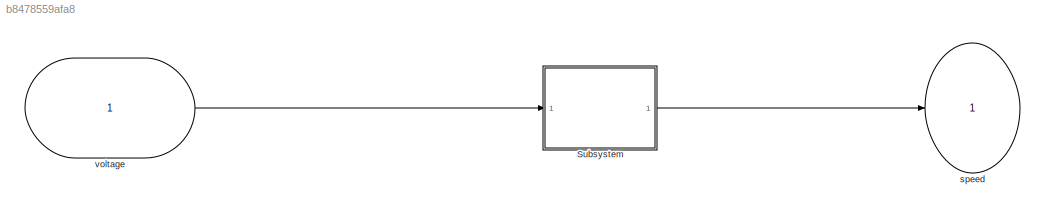
MODEL slx_b8478559afa8
KIND model
CONFIG AbsTol = auto
CONFIG EnableMultiTasking = off
CONFIG FixedStep = auto
CONFIG MaxStep = auto
CONFIG MinStep = auto
CONFIG RelTol = 1e-3
CONFIG SampleTimeConstraint = Unconstrained
CONFIG SolverName = VariableStepAuto
CONFIG StartTime = 0.0
CONFIG StopTime = 10.0
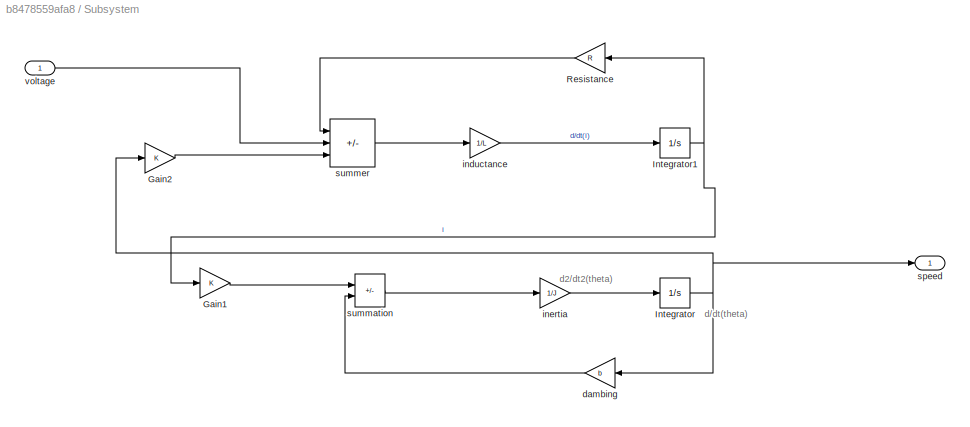
BLOCK [SubSystem] Subsystem
  Ports = [1, 1]
  RequestExecContextInheritance = off
BLOCK [Gain] Subsystem/Gain1
  Gain = K
BLOCK [Gain] Subsystem/Gain2
  Gain = K
BLOCK [Integrator] Subsystem/Integrator
  Ports = [1, 1]
BLOCK [Integrator] Subsystem/Integrator1
  Ports = [1, 1]
BLOCK [Gain] Subsystem/Resistance
  Gain = R
BLOCK [Gain] Subsystem/dambing
  Gain = b
BLOCK [Gain] Subsystem/inductance
  Gain = 1/L
BLOCK [Gain] Subsystem/inertia
  Gain = 1/J
BLOCK [Outport] Subsystem/speed
BLOCK [Sum] Subsystem/summation
  IconShape = rectangular
  Inputs = +-
  Ports = [2, 1]
BLOCK [Sum] Subsystem/summer
  IconShape = rectangular
  Inputs = -+-
  Ports = [3, 1]
BLOCK [Inport] Subsystem/voltage
BLOCK [Outport] speed
BLOCK [Inport] voltage
  NameLocation = left
ANNOTATION Subsystem: d/dt(theta)
ANNOTATION Subsystem: d2/dt2(theta)
LINE Subsystem/Gain1:1 -> Subsystem/summation:1
LINE Subsystem/Gain2:1 -> Subsystem/summer:3
NET Subsystem/Integrator1:1 -> Subsystem/Gain1:1, Subsystem/Resistance:1
NET Subsystem/Integrator:1 -> Subsystem/Gain2:1, Subsystem/dambing:1, Subsystem/speed:1
LINE Subsystem/Resistance:1 -> Subsystem/summer:1
LINE Subsystem/dambing:1 -> Subsystem/summation:2
LINE Subsystem/inductance:1 -> Subsystem/Integrator1:1
LINE Subsystem/inertia:1 -> Subsystem/Integrator:1
LINE Subsystem/summation:1 -> Subsystem/inertia:1
LINE Subsystem/summer:1 -> Subsystem/inductance:1
LINE Subsystem/voltage:1 -> Subsystem/summer:2
LINE Subsystem:1 -> speed:1
LINE voltage:1 -> Subsystem:1
note: NET lines group one-source signal fan-out (src -> all destinations, sorted); 1:1 wires keep LINE
